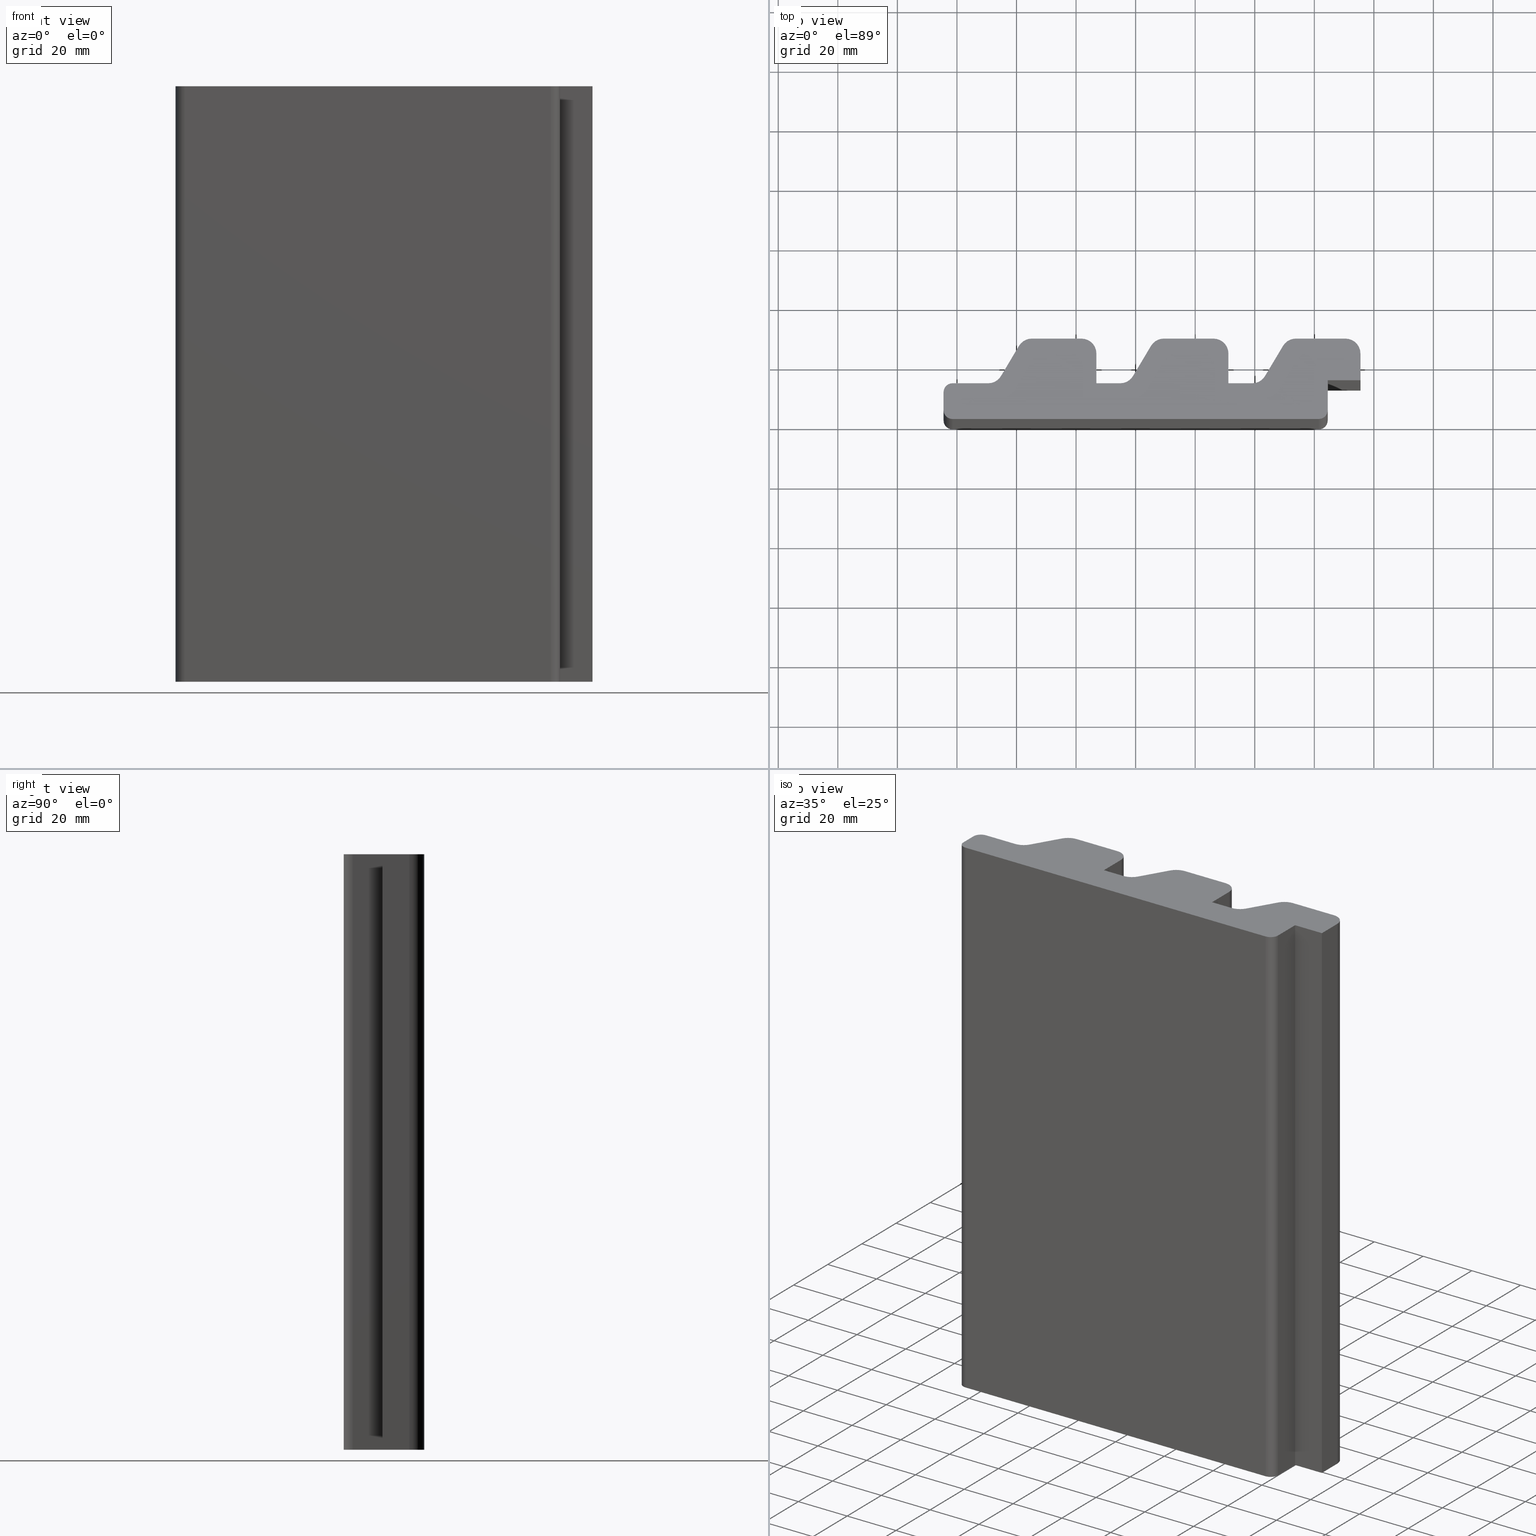
[diagram: canonical four-view strip — front | top / right | iso, engineering-drawing reading convention]
A machine part, canonical four-view strip (front | top / right | iso — engineering-drawing reading convention). The complete STEP part file that produces these views, byte-faithful:
ISO-10303-21;
HEADER;
/* Generated by software containing ST-Developer
 * from STEP Tools, Inc. (www.steptools.com) 
 */

FILE_DESCRIPTION(
/* description */ (''),
/* implementation_level */ '2;1');

FILE_NAME(
/* name */ 
'C:/Users/Eigenaar/Documents/Andrew/Ventura Welding (Workshop)/For Con
struction 2021/PlatoWood profile drawings/PlatoWood profiles, STEP/Pla
toWood 27x140 P10 (Tandprofiel).step',
/* time_stamp */ '2021-11-11T08:04:43+01:00',
/* author */ (''),
/* organization */ (''),
/* preprocessor_version */ 'ST-DEVELOPER v18.1',
/* originating_system */ 'Autodesk Translation Framework v10.10.0.1391',

/* authorisation */ '');

FILE_SCHEMA (('AUTOMOTIVE_DESIGN { 1 0 10303 214 3 1 1 }'));
ENDSEC;

DATA;
#10=MECHANICAL_DESIGN_GEOMETRIC_PRESENTATION_REPRESENTATION('',(#13),#999);
#11=SHAPE_REPRESENTATION_RELATIONSHIP('SRR','None',#1006,#12);
#12=ADVANCED_BREP_SHAPE_REPRESENTATION('',(#14),#998);
#13=STYLED_ITEM('',(#1016),#14);
#14=MANIFOLD_SOLID_BREP('Body1',#587);
#15=PLANE('',#604);
#16=PLANE('',#608);
#17=PLANE('',#612);
#18=PLANE('',#613);
#19=PLANE('',#614);
#20=PLANE('',#618);
#21=PLANE('',#622);
#22=PLANE('',#626);
#23=PLANE('',#630);
#24=PLANE('',#634);
#25=PLANE('',#638);
#26=PLANE('',#639);
#27=PLANE('',#643);
#28=PLANE('',#647);
#29=PLANE('',#651);
#30=PLANE('',#652);
#31=PLANE('',#653);
#32=PLANE('',#654);
#33=FACE_OUTER_BOUND('',#63,.T.);
#34=FACE_OUTER_BOUND('',#64,.T.);
#35=FACE_OUTER_BOUND('',#65,.T.);
#36=FACE_OUTER_BOUND('',#66,.T.);
#37=FACE_OUTER_BOUND('',#67,.T.);
#38=FACE_OUTER_BOUND('',#68,.T.);
#39=FACE_OUTER_BOUND('',#69,.T.);
#40=FACE_OUTER_BOUND('',#70,.T.);
#41=FACE_OUTER_BOUND('',#71,.T.);
#42=FACE_OUTER_BOUND('',#72,.T.);
#43=FACE_OUTER_BOUND('',#73,.T.);
#44=FACE_OUTER_BOUND('',#74,.T.);
#45=FACE_OUTER_BOUND('',#75,.T.);
#46=FACE_OUTER_BOUND('',#76,.T.);
#47=FACE_OUTER_BOUND('',#77,.T.);
#48=FACE_OUTER_BOUND('',#78,.T.);
#49=FACE_OUTER_BOUND('',#79,.T.);
#50=FACE_OUTER_BOUND('',#80,.T.);
#51=FACE_OUTER_BOUND('',#81,.T.);
#52=FACE_OUTER_BOUND('',#82,.T.);
#53=FACE_OUTER_BOUND('',#83,.T.);
#54=FACE_OUTER_BOUND('',#84,.T.);
#55=FACE_OUTER_BOUND('',#85,.T.);
#56=FACE_OUTER_BOUND('',#86,.T.);
#57=FACE_OUTER_BOUND('',#87,.T.);
#58=FACE_OUTER_BOUND('',#88,.T.);
#59=FACE_OUTER_BOUND('',#89,.T.);
#60=FACE_OUTER_BOUND('',#90,.T.);
#61=FACE_OUTER_BOUND('',#91,.T.);
#62=FACE_OUTER_BOUND('',#92,.T.);
#63=EDGE_LOOP('',(#377,#378,#379,#380));
#64=EDGE_LOOP('',(#381,#382,#383,#384));
#65=EDGE_LOOP('',(#385,#386,#387,#388));
#66=EDGE_LOOP('',(#389,#390,#391,#392));
#67=EDGE_LOOP('',(#393,#394,#395,#396));
#68=EDGE_LOOP('',(#397,#398,#399,#400));
#69=EDGE_LOOP('',(#401,#402,#403,#404));
#70=EDGE_LOOP('',(#405,#406,#407,#408));
#71=EDGE_LOOP('',(#409,#410,#411,#412));
#72=EDGE_LOOP('',(#413,#414,#415,#416));
#73=EDGE_LOOP('',(#417,#418,#419,#420));
#74=EDGE_LOOP('',(#421,#422,#423,#424));
#75=EDGE_LOOP('',(#425,#426,#427,#428));
#76=EDGE_LOOP('',(#429,#430,#431,#432));
#77=EDGE_LOOP('',(#433,#434,#435,#436));
#78=EDGE_LOOP('',(#437,#438,#439,#440));
#79=EDGE_LOOP('',(#441,#442,#443,#444));
#80=EDGE_LOOP('',(#445,#446,#447,#448));
#81=EDGE_LOOP('',(#449,#450,#451,#452));
#82=EDGE_LOOP('',(#453,#454,#455,#456));
#83=EDGE_LOOP('',(#457,#458,#459,#460));
#84=EDGE_LOOP('',(#461,#462,#463,#464));
#85=EDGE_LOOP('',(#465,#466,#467,#468));
#86=EDGE_LOOP('',(#469,#470,#471,#472));
#87=EDGE_LOOP('',(#473,#474,#475,#476));
#88=EDGE_LOOP('',(#477,#478,#479,#480));
#89=EDGE_LOOP('',(#481,#482,#483,#484));
#90=EDGE_LOOP('',(#485,#486,#487,#488));
#91=EDGE_LOOP('',(#489,#490,#491,#492,#493,#494,#495,#496,#497,#498,#499,
#500,#501,#502,#503,#504,#505,#506,#507,#508,#509,#510,#511,#512,#513,#514,
#515,#516));
#92=EDGE_LOOP('',(#517,#518,#519,#520,#521,#522,#523,#524,#525,#526,#527,
#528,#529,#530,#531,#532,#533,#534,#535,#536,#537,#538,#539,#540,#541,#542,
#543,#544));
#93=LINE('',#831,#153);
#94=LINE('',#834,#154);
#95=LINE('',#837,#155);
#96=LINE('',#839,#156);
#97=LINE('',#840,#157);
#98=LINE('',#846,#158);
#99=LINE('',#849,#159);
#100=LINE('',#851,#160);
#101=LINE('',#852,#161);
#102=LINE('',#858,#162);
#103=LINE('',#861,#163);
#104=LINE('',#863,#164);
#105=LINE('',#864,#165);
#106=LINE('',#867,#166);
#107=LINE('',#869,#167);
#108=LINE('',#870,#168);
#109=LINE('',#873,#169);
#110=LINE('',#875,#170);
#111=LINE('',#876,#171);
#112=LINE('',#882,#172);
#113=LINE('',#885,#173);
#114=LINE('',#887,#174);
#115=LINE('',#888,#175);
#116=LINE('',#894,#176);
#117=LINE('',#897,#177);
#118=LINE('',#899,#178);
#119=LINE('',#900,#179);
#120=LINE('',#906,#180);
#121=LINE('',#909,#181);
#122=LINE('',#911,#182);
#123=LINE('',#912,#183);
#124=LINE('',#918,#184);
#125=LINE('',#921,#185);
#126=LINE('',#923,#186);
#127=LINE('',#924,#187);
#128=LINE('',#930,#188);
#129=LINE('',#933,#189);
#130=LINE('',#935,#190);
#131=LINE('',#936,#191);
#132=LINE('',#942,#192);
#133=LINE('',#945,#193);
#134=LINE('',#947,#194);
#135=LINE('',#948,#195);
#136=LINE('',#951,#196);
#137=LINE('',#953,#197);
#138=LINE('',#954,#198);
#139=LINE('',#960,#199);
#140=LINE('',#963,#200);
#141=LINE('',#965,#201);
#142=LINE('',#966,#202);
#143=LINE('',#972,#203);
#144=LINE('',#975,#204);
#145=LINE('',#977,#205);
#146=LINE('',#978,#206);
#147=LINE('',#984,#207);
#148=LINE('',#987,#208);
#149=LINE('',#989,#209);
#150=LINE('',#990,#210);
#151=LINE('',#992,#211);
#152=LINE('',#993,#212);
#153=VECTOR('',#661,10.);
#154=VECTOR('',#664,10.);
#155=VECTOR('',#667,10.);
#156=VECTOR('',#668,10.);
#157=VECTOR('',#669,10.);
#158=VECTOR('',#676,10.);
#159=VECTOR('',#679,10.);
#160=VECTOR('',#680,10.);
#161=VECTOR('',#681,10.);
#162=VECTOR('',#688,10.);
#163=VECTOR('',#691,10.);
#164=VECTOR('',#692,10.);
#165=VECTOR('',#693,10.);
#166=VECTOR('',#696,10.);
#167=VECTOR('',#697,10.);
#168=VECTOR('',#698,10.);
#169=VECTOR('',#701,10.);
#170=VECTOR('',#702,10.);
#171=VECTOR('',#703,10.);
#172=VECTOR('',#710,10.);
#173=VECTOR('',#713,10.);
#174=VECTOR('',#714,10.);
#175=VECTOR('',#715,10.);
#176=VECTOR('',#722,10.);
#177=VECTOR('',#725,10.);
#178=VECTOR('',#726,10.);
#179=VECTOR('',#727,10.);
#180=VECTOR('',#734,10.);
#181=VECTOR('',#737,10.);
#182=VECTOR('',#738,10.);
#183=VECTOR('',#739,10.);
#184=VECTOR('',#746,10.);
#185=VECTOR('',#749,10.);
#186=VECTOR('',#750,10.);
#187=VECTOR('',#751,10.);
#188=VECTOR('',#758,10.);
#189=VECTOR('',#761,10.);
#190=VECTOR('',#762,10.);
#191=VECTOR('',#763,10.);
#192=VECTOR('',#770,10.);
#193=VECTOR('',#773,10.);
#194=VECTOR('',#774,10.);
#195=VECTOR('',#775,10.);
#196=VECTOR('',#778,10.);
#197=VECTOR('',#779,10.);
#198=VECTOR('',#780,10.);
#199=VECTOR('',#787,10.);
#200=VECTOR('',#790,10.);
#201=VECTOR('',#791,10.);
#202=VECTOR('',#792,10.);
#203=VECTOR('',#799,10.);
#204=VECTOR('',#802,10.);
#205=VECTOR('',#803,10.);
#206=VECTOR('',#804,10.);
#207=VECTOR('',#811,10.);
#208=VECTOR('',#814,10.);
#209=VECTOR('',#815,10.);
#210=VECTOR('',#816,10.);
#211=VECTOR('',#819,10.);
#212=VECTOR('',#820,10.);
#213=CIRCLE('',#602,4.99999999999996);
#214=CIRCLE('',#603,4.99999999999996);
#215=CIRCLE('',#606,5.00000000000231);
#216=CIRCLE('',#607,5.00000000000231);
#217=CIRCLE('',#610,5.);
#218=CIRCLE('',#611,5.);
#219=CIRCLE('',#616,2.99999999996608);
#220=CIRCLE('',#617,2.99999999996608);
#221=CIRCLE('',#620,2.99999999998435);
#222=CIRCLE('',#621,2.99999999998435);
#223=CIRCLE('',#624,3.00000000000069);
#224=CIRCLE('',#625,3.00000000000069);
#225=CIRCLE('',#628,5.);
#226=CIRCLE('',#629,5.);
#227=CIRCLE('',#632,4.99999999999862);
#228=CIRCLE('',#633,4.99999999999862);
#229=CIRCLE('',#636,5.);
#230=CIRCLE('',#637,5.);
#231=CIRCLE('',#641,5.);
#232=CIRCLE('',#642,5.);
#233=CIRCLE('',#645,5.0000000000001);
#234=CIRCLE('',#646,5.0000000000001);
#235=CIRCLE('',#649,4.99999999999968);
#236=CIRCLE('',#650,4.99999999999968);
#237=VERTEX_POINT('',#827);
#238=VERTEX_POINT('',#828);
#239=VERTEX_POINT('',#830);
#240=VERTEX_POINT('',#832);
#241=VERTEX_POINT('',#836);
#242=VERTEX_POINT('',#838);
#243=VERTEX_POINT('',#842);
#244=VERTEX_POINT('',#844);
#245=VERTEX_POINT('',#848);
#246=VERTEX_POINT('',#850);
#247=VERTEX_POINT('',#854);
#248=VERTEX_POINT('',#856);
#249=VERTEX_POINT('',#860);
#250=VERTEX_POINT('',#862);
#251=VERTEX_POINT('',#866);
#252=VERTEX_POINT('',#868);
#253=VERTEX_POINT('',#872);
#254=VERTEX_POINT('',#874);
#255=VERTEX_POINT('',#878);
#256=VERTEX_POINT('',#880);
#257=VERTEX_POINT('',#884);
#258=VERTEX_POINT('',#886);
#259=VERTEX_POINT('',#890);
#260=VERTEX_POINT('',#892);
#261=VERTEX_POINT('',#896);
#262=VERTEX_POINT('',#898);
#263=VERTEX_POINT('',#902);
#264=VERTEX_POINT('',#904);
#265=VERTEX_POINT('',#908);
#266=VERTEX_POINT('',#910);
#267=VERTEX_POINT('',#914);
#268=VERTEX_POINT('',#916);
#269=VERTEX_POINT('',#920);
#270=VERTEX_POINT('',#922);
#271=VERTEX_POINT('',#926);
#272=VERTEX_POINT('',#928);
#273=VERTEX_POINT('',#932);
#274=VERTEX_POINT('',#934);
#275=VERTEX_POINT('',#938);
#276=VERTEX_POINT('',#940);
#277=VERTEX_POINT('',#944);
#278=VERTEX_POINT('',#946);
#279=VERTEX_POINT('',#950);
#280=VERTEX_POINT('',#952);
#281=VERTEX_POINT('',#956);
#282=VERTEX_POINT('',#958);
#283=VERTEX_POINT('',#962);
#284=VERTEX_POINT('',#964);
#285=VERTEX_POINT('',#968);
#286=VERTEX_POINT('',#970);
#287=VERTEX_POINT('',#974);
#288=VERTEX_POINT('',#976);
#289=VERTEX_POINT('',#980);
#290=VERTEX_POINT('',#982);
#291=VERTEX_POINT('',#986);
#292=VERTEX_POINT('',#988);
#293=EDGE_CURVE('',#237,#238,#213,.T.);
#294=EDGE_CURVE('',#237,#239,#93,.T.);
#295=EDGE_CURVE('',#240,#239,#214,.T.);
#296=EDGE_CURVE('',#238,#240,#94,.T.);
#297=EDGE_CURVE('',#241,#238,#95,.T.);
#298=EDGE_CURVE('',#242,#240,#96,.T.);
#299=EDGE_CURVE('',#241,#242,#97,.T.);
#300=EDGE_CURVE('',#243,#241,#215,.T.);
#301=EDGE_CURVE('',#244,#242,#216,.T.);
#302=EDGE_CURVE('',#243,#244,#98,.T.);
#303=EDGE_CURVE('',#243,#245,#99,.T.);
#304=EDGE_CURVE('',#246,#244,#100,.T.);
#305=EDGE_CURVE('',#245,#246,#101,.T.);
#306=EDGE_CURVE('',#247,#245,#217,.T.);
#307=EDGE_CURVE('',#248,#246,#218,.T.);
#308=EDGE_CURVE('',#247,#248,#102,.T.);
#309=EDGE_CURVE('',#249,#247,#103,.T.);
#310=EDGE_CURVE('',#250,#248,#104,.T.);
#311=EDGE_CURVE('',#249,#250,#105,.T.);
#312=EDGE_CURVE('',#251,#249,#106,.T.);
#313=EDGE_CURVE('',#252,#250,#107,.T.);
#314=EDGE_CURVE('',#251,#252,#108,.T.);
#315=EDGE_CURVE('',#253,#251,#109,.T.);
#316=EDGE_CURVE('',#254,#252,#110,.T.);
#317=EDGE_CURVE('',#253,#254,#111,.T.);
#318=EDGE_CURVE('',#255,#253,#219,.T.);
#319=EDGE_CURVE('',#256,#254,#220,.T.);
#320=EDGE_CURVE('',#255,#256,#112,.T.);
#321=EDGE_CURVE('',#257,#255,#113,.T.);
#322=EDGE_CURVE('',#258,#256,#114,.T.);
#323=EDGE_CURVE('',#257,#258,#115,.T.);
#324=EDGE_CURVE('',#259,#257,#221,.T.);
#325=EDGE_CURVE('',#260,#258,#222,.T.);
#326=EDGE_CURVE('',#259,#260,#116,.T.);
#327=EDGE_CURVE('',#259,#261,#117,.T.);
#328=EDGE_CURVE('',#262,#260,#118,.T.);
#329=EDGE_CURVE('',#261,#262,#119,.T.);
#330=EDGE_CURVE('',#263,#261,#223,.T.);
#331=EDGE_CURVE('',#264,#262,#224,.T.);
#332=EDGE_CURVE('',#263,#264,#120,.T.);
#333=EDGE_CURVE('',#263,#265,#121,.T.);
#334=EDGE_CURVE('',#266,#264,#122,.T.);
#335=EDGE_CURVE('',#265,#266,#123,.T.);
#336=EDGE_CURVE('',#265,#267,#225,.T.);
#337=EDGE_CURVE('',#268,#266,#226,.T.);
#338=EDGE_CURVE('',#267,#268,#124,.T.);
#339=EDGE_CURVE('',#269,#267,#125,.T.);
#340=EDGE_CURVE('',#270,#268,#126,.T.);
#341=EDGE_CURVE('',#269,#270,#127,.T.);
#342=EDGE_CURVE('',#271,#269,#227,.T.);
#343=EDGE_CURVE('',#272,#270,#228,.T.);
#344=EDGE_CURVE('',#271,#272,#128,.T.);
#345=EDGE_CURVE('',#273,#271,#129,.T.);
#346=EDGE_CURVE('',#274,#272,#130,.T.);
#347=EDGE_CURVE('',#273,#274,#131,.T.);
#348=EDGE_CURVE('',#275,#273,#229,.T.);
#349=EDGE_CURVE('',#276,#274,#230,.T.);
#350=EDGE_CURVE('',#275,#276,#132,.T.);
#351=EDGE_CURVE('',#277,#275,#133,.T.);
#352=EDGE_CURVE('',#278,#276,#134,.T.);
#353=EDGE_CURVE('',#277,#278,#135,.T.);
#354=EDGE_CURVE('',#277,#279,#136,.T.);
#355=EDGE_CURVE('',#280,#278,#137,.T.);
#356=EDGE_CURVE('',#279,#280,#138,.T.);
#357=EDGE_CURVE('',#279,#281,#231,.T.);
#358=EDGE_CURVE('',#282,#280,#232,.T.);
#359=EDGE_CURVE('',#281,#282,#139,.T.);
#360=EDGE_CURVE('',#283,#281,#140,.T.);
#361=EDGE_CURVE('',#284,#282,#141,.T.);
#362=EDGE_CURVE('',#283,#284,#142,.T.);
#363=EDGE_CURVE('',#285,#283,#233,.T.);
#364=EDGE_CURVE('',#286,#284,#234,.T.);
#365=EDGE_CURVE('',#285,#286,#143,.T.);
#366=EDGE_CURVE('',#287,#285,#144,.T.);
#367=EDGE_CURVE('',#288,#286,#145,.T.);
#368=EDGE_CURVE('',#287,#288,#146,.T.);
#369=EDGE_CURVE('',#289,#287,#235,.T.);
#370=EDGE_CURVE('',#290,#288,#236,.T.);
#371=EDGE_CURVE('',#289,#290,#147,.T.);
#372=EDGE_CURVE('',#291,#289,#148,.T.);
#373=EDGE_CURVE('',#292,#290,#149,.T.);
#374=EDGE_CURVE('',#291,#292,#150,.T.);
#375=EDGE_CURVE('',#237,#291,#151,.T.);
#376=EDGE_CURVE('',#239,#292,#152,.T.);
#377=ORIENTED_EDGE('',*,*,#293,.F.);
#378=ORIENTED_EDGE('',*,*,#294,.T.);
#379=ORIENTED_EDGE('',*,*,#295,.F.);
#380=ORIENTED_EDGE('',*,*,#296,.F.);
#381=ORIENTED_EDGE('',*,*,#297,.T.);
#382=ORIENTED_EDGE('',*,*,#296,.T.);
#383=ORIENTED_EDGE('',*,*,#298,.F.);
#384=ORIENTED_EDGE('',*,*,#299,.F.);
#385=ORIENTED_EDGE('',*,*,#300,.T.);
#386=ORIENTED_EDGE('',*,*,#299,.T.);
#387=ORIENTED_EDGE('',*,*,#301,.F.);
#388=ORIENTED_EDGE('',*,*,#302,.F.);
#389=ORIENTED_EDGE('',*,*,#303,.F.);
#390=ORIENTED_EDGE('',*,*,#302,.T.);
#391=ORIENTED_EDGE('',*,*,#304,.F.);
#392=ORIENTED_EDGE('',*,*,#305,.F.);
#393=ORIENTED_EDGE('',*,*,#306,.T.);
#394=ORIENTED_EDGE('',*,*,#305,.T.);
#395=ORIENTED_EDGE('',*,*,#307,.F.);
#396=ORIENTED_EDGE('',*,*,#308,.F.);
#397=ORIENTED_EDGE('',*,*,#309,.T.);
#398=ORIENTED_EDGE('',*,*,#308,.T.);
#399=ORIENTED_EDGE('',*,*,#310,.F.);
#400=ORIENTED_EDGE('',*,*,#311,.F.);
#401=ORIENTED_EDGE('',*,*,#312,.T.);
#402=ORIENTED_EDGE('',*,*,#311,.T.);
#403=ORIENTED_EDGE('',*,*,#313,.F.);
#404=ORIENTED_EDGE('',*,*,#314,.F.);
#405=ORIENTED_EDGE('',*,*,#315,.T.);
#406=ORIENTED_EDGE('',*,*,#314,.T.);
#407=ORIENTED_EDGE('',*,*,#316,.F.);
#408=ORIENTED_EDGE('',*,*,#317,.F.);
#409=ORIENTED_EDGE('',*,*,#318,.T.);
#410=ORIENTED_EDGE('',*,*,#317,.T.);
#411=ORIENTED_EDGE('',*,*,#319,.F.);
#412=ORIENTED_EDGE('',*,*,#320,.F.);
#413=ORIENTED_EDGE('',*,*,#321,.T.);
#414=ORIENTED_EDGE('',*,*,#320,.T.);
#415=ORIENTED_EDGE('',*,*,#322,.F.);
#416=ORIENTED_EDGE('',*,*,#323,.F.);
#417=ORIENTED_EDGE('',*,*,#324,.T.);
#418=ORIENTED_EDGE('',*,*,#323,.T.);
#419=ORIENTED_EDGE('',*,*,#325,.F.);
#420=ORIENTED_EDGE('',*,*,#326,.F.);
#421=ORIENTED_EDGE('',*,*,#327,.F.);
#422=ORIENTED_EDGE('',*,*,#326,.T.);
#423=ORIENTED_EDGE('',*,*,#328,.F.);
#424=ORIENTED_EDGE('',*,*,#329,.F.);
#425=ORIENTED_EDGE('',*,*,#330,.T.);
#426=ORIENTED_EDGE('',*,*,#329,.T.);
#427=ORIENTED_EDGE('',*,*,#331,.F.);
#428=ORIENTED_EDGE('',*,*,#332,.F.);
#429=ORIENTED_EDGE('',*,*,#333,.F.);
#430=ORIENTED_EDGE('',*,*,#332,.T.);
#431=ORIENTED_EDGE('',*,*,#334,.F.);
#432=ORIENTED_EDGE('',*,*,#335,.F.);
#433=ORIENTED_EDGE('',*,*,#336,.F.);
#434=ORIENTED_EDGE('',*,*,#335,.T.);
#435=ORIENTED_EDGE('',*,*,#337,.F.);
#436=ORIENTED_EDGE('',*,*,#338,.F.);
#437=ORIENTED_EDGE('',*,*,#339,.T.);
#438=ORIENTED_EDGE('',*,*,#338,.T.);
#439=ORIENTED_EDGE('',*,*,#340,.F.);
#440=ORIENTED_EDGE('',*,*,#341,.F.);
#441=ORIENTED_EDGE('',*,*,#342,.T.);
#442=ORIENTED_EDGE('',*,*,#341,.T.);
#443=ORIENTED_EDGE('',*,*,#343,.F.);
#444=ORIENTED_EDGE('',*,*,#344,.F.);
#445=ORIENTED_EDGE('',*,*,#345,.T.);
#446=ORIENTED_EDGE('',*,*,#344,.T.);
#447=ORIENTED_EDGE('',*,*,#346,.F.);
#448=ORIENTED_EDGE('',*,*,#347,.F.);
#449=ORIENTED_EDGE('',*,*,#348,.T.);
#450=ORIENTED_EDGE('',*,*,#347,.T.);
#451=ORIENTED_EDGE('',*,*,#349,.F.);
#452=ORIENTED_EDGE('',*,*,#350,.F.);
#453=ORIENTED_EDGE('',*,*,#351,.T.);
#454=ORIENTED_EDGE('',*,*,#350,.T.);
#455=ORIENTED_EDGE('',*,*,#352,.F.);
#456=ORIENTED_EDGE('',*,*,#353,.F.);
#457=ORIENTED_EDGE('',*,*,#354,.F.);
#458=ORIENTED_EDGE('',*,*,#353,.T.);
#459=ORIENTED_EDGE('',*,*,#355,.F.);
#460=ORIENTED_EDGE('',*,*,#356,.F.);
#461=ORIENTED_EDGE('',*,*,#357,.F.);
#462=ORIENTED_EDGE('',*,*,#356,.T.);
#463=ORIENTED_EDGE('',*,*,#358,.F.);
#464=ORIENTED_EDGE('',*,*,#359,.F.);
#465=ORIENTED_EDGE('',*,*,#360,.T.);
#466=ORIENTED_EDGE('',*,*,#359,.T.);
#467=ORIENTED_EDGE('',*,*,#361,.F.);
#468=ORIENTED_EDGE('',*,*,#362,.F.);
#469=ORIENTED_EDGE('',*,*,#363,.T.);
#470=ORIENTED_EDGE('',*,*,#362,.T.);
#471=ORIENTED_EDGE('',*,*,#364,.F.);
#472=ORIENTED_EDGE('',*,*,#365,.F.);
#473=ORIENTED_EDGE('',*,*,#366,.T.);
#474=ORIENTED_EDGE('',*,*,#365,.T.);
#475=ORIENTED_EDGE('',*,*,#367,.F.);
#476=ORIENTED_EDGE('',*,*,#368,.F.);
#477=ORIENTED_EDGE('',*,*,#369,.T.);
#478=ORIENTED_EDGE('',*,*,#368,.T.);
#479=ORIENTED_EDGE('',*,*,#370,.F.);
#480=ORIENTED_EDGE('',*,*,#371,.F.);
#481=ORIENTED_EDGE('',*,*,#372,.T.);
#482=ORIENTED_EDGE('',*,*,#371,.T.);
#483=ORIENTED_EDGE('',*,*,#373,.F.);
#484=ORIENTED_EDGE('',*,*,#374,.F.);
#485=ORIENTED_EDGE('',*,*,#375,.T.);
#486=ORIENTED_EDGE('',*,*,#374,.T.);
#487=ORIENTED_EDGE('',*,*,#376,.F.);
#488=ORIENTED_EDGE('',*,*,#294,.F.);
#489=ORIENTED_EDGE('',*,*,#376,.T.);
#490=ORIENTED_EDGE('',*,*,#373,.T.);
#491=ORIENTED_EDGE('',*,*,#370,.T.);
#492=ORIENTED_EDGE('',*,*,#367,.T.);
#493=ORIENTED_EDGE('',*,*,#364,.T.);
#494=ORIENTED_EDGE('',*,*,#361,.T.);
#495=ORIENTED_EDGE('',*,*,#358,.T.);
#496=ORIENTED_EDGE('',*,*,#355,.T.);
#497=ORIENTED_EDGE('',*,*,#352,.T.);
#498=ORIENTED_EDGE('',*,*,#349,.T.);
#499=ORIENTED_EDGE('',*,*,#346,.T.);
#500=ORIENTED_EDGE('',*,*,#343,.T.);
#501=ORIENTED_EDGE('',*,*,#340,.T.);
#502=ORIENTED_EDGE('',*,*,#337,.T.);
#503=ORIENTED_EDGE('',*,*,#334,.T.);
#504=ORIENTED_EDGE('',*,*,#331,.T.);
#505=ORIENTED_EDGE('',*,*,#328,.T.);
#506=ORIENTED_EDGE('',*,*,#325,.T.);
#507=ORIENTED_EDGE('',*,*,#322,.T.);
#508=ORIENTED_EDGE('',*,*,#319,.T.);
#509=ORIENTED_EDGE('',*,*,#316,.T.);
#510=ORIENTED_EDGE('',*,*,#313,.T.);
#511=ORIENTED_EDGE('',*,*,#310,.T.);
#512=ORIENTED_EDGE('',*,*,#307,.T.);
#513=ORIENTED_EDGE('',*,*,#304,.T.);
#514=ORIENTED_EDGE('',*,*,#301,.T.);
#515=ORIENTED_EDGE('',*,*,#298,.T.);
#516=ORIENTED_EDGE('',*,*,#295,.T.);
#517=ORIENTED_EDGE('',*,*,#375,.F.);
#518=ORIENTED_EDGE('',*,*,#293,.T.);
#519=ORIENTED_EDGE('',*,*,#297,.F.);
#520=ORIENTED_EDGE('',*,*,#300,.F.);
#521=ORIENTED_EDGE('',*,*,#303,.T.);
#522=ORIENTED_EDGE('',*,*,#306,.F.);
#523=ORIENTED_EDGE('',*,*,#309,.F.);
#524=ORIENTED_EDGE('',*,*,#312,.F.);
#525=ORIENTED_EDGE('',*,*,#315,.F.);
#526=ORIENTED_EDGE('',*,*,#318,.F.);
#527=ORIENTED_EDGE('',*,*,#321,.F.);
#528=ORIENTED_EDGE('',*,*,#324,.F.);
#529=ORIENTED_EDGE('',*,*,#327,.T.);
#530=ORIENTED_EDGE('',*,*,#330,.F.);
#531=ORIENTED_EDGE('',*,*,#333,.T.);
#532=ORIENTED_EDGE('',*,*,#336,.T.);
#533=ORIENTED_EDGE('',*,*,#339,.F.);
#534=ORIENTED_EDGE('',*,*,#342,.F.);
#535=ORIENTED_EDGE('',*,*,#345,.F.);
#536=ORIENTED_EDGE('',*,*,#348,.F.);
#537=ORIENTED_EDGE('',*,*,#351,.F.);
#538=ORIENTED_EDGE('',*,*,#354,.T.);
#539=ORIENTED_EDGE('',*,*,#357,.T.);
#540=ORIENTED_EDGE('',*,*,#360,.F.);
#541=ORIENTED_EDGE('',*,*,#363,.F.);
#542=ORIENTED_EDGE('',*,*,#366,.F.);
#543=ORIENTED_EDGE('',*,*,#369,.F.);
#544=ORIENTED_EDGE('',*,*,#372,.F.);
#545=CYLINDRICAL_SURFACE('',#601,4.99999999999996);
#546=CYLINDRICAL_SURFACE('',#605,5.00000000000231);
#547=CYLINDRICAL_SURFACE('',#609,5.);
#548=CYLINDRICAL_SURFACE('',#615,2.99999999996608);
#549=CYLINDRICAL_SURFACE('',#619,2.99999999998435);
#550=CYLINDRICAL_SURFACE('',#623,3.00000000000069);
#551=CYLINDRICAL_SURFACE('',#627,5.);
#552=CYLINDRICAL_SURFACE('',#631,4.99999999999862);
#553=CYLINDRICAL_SURFACE('',#635,5.);
#554=CYLINDRICAL_SURFACE('',#640,5.);
#555=CYLINDRICAL_SURFACE('',#644,5.0000000000001);
#556=CYLINDRICAL_SURFACE('',#648,4.99999999999968);
#557=ADVANCED_FACE('',(#33),#545,.F.);
#558=ADVANCED_FACE('',(#34),#15,.T.);
#559=ADVANCED_FACE('',(#35),#546,.T.);
#560=ADVANCED_FACE('',(#36),#16,.T.);
#561=ADVANCED_FACE('',(#37),#547,.T.);
#562=ADVANCED_FACE('',(#38),#17,.T.);
#563=ADVANCED_FACE('',(#39),#18,.T.);
#564=ADVANCED_FACE('',(#40),#19,.T.);
#565=ADVANCED_FACE('',(#41),#548,.T.);
#566=ADVANCED_FACE('',(#42),#20,.T.);
#567=ADVANCED_FACE('',(#43),#549,.T.);
#568=ADVANCED_FACE('',(#44),#21,.T.);
#569=ADVANCED_FACE('',(#45),#550,.T.);
#570=ADVANCED_FACE('',(#46),#22,.T.);
#571=ADVANCED_FACE('',(#47),#551,.F.);
#572=ADVANCED_FACE('',(#48),#23,.T.);
#573=ADVANCED_FACE('',(#49),#552,.T.);
#574=ADVANCED_FACE('',(#50),#24,.T.);
#575=ADVANCED_FACE('',(#51),#553,.T.);
#576=ADVANCED_FACE('',(#52),#25,.T.);
#577=ADVANCED_FACE('',(#53),#26,.T.);
#578=ADVANCED_FACE('',(#54),#554,.F.);
#579=ADVANCED_FACE('',(#55),#27,.T.);
#580=ADVANCED_FACE('',(#56),#555,.T.);
#581=ADVANCED_FACE('',(#57),#28,.T.);
#582=ADVANCED_FACE('',(#58),#556,.T.);
#583=ADVANCED_FACE('',(#59),#29,.T.);
#584=ADVANCED_FACE('',(#60),#30,.T.);
#585=ADVANCED_FACE('',(#61),#31,.T.);
#586=ADVANCED_FACE('',(#62),#32,.F.);
#587=CLOSED_SHELL('',(#557,#558,#559,#560,#561,#562,#563,#564,#565,#566,
#567,#568,#569,#570,#571,#572,#573,#574,#575,#576,#577,#578,#579,#580,#581,
#582,#583,#584,#585,#586));
#588=DERIVED_UNIT_ELEMENT(#590,1.);
#589=DERIVED_UNIT_ELEMENT(#1001,-3.);
#590=(
MASS_UNIT()
NAMED_UNIT(*)
SI_UNIT(.KILO.,.GRAM.)
);
#591=DERIVED_UNIT((#588,#589));
#592=MEASURE_REPRESENTATION_ITEM('density measure',
POSITIVE_RATIO_MEASURE(7850.),#591);
#593=PROPERTY_DEFINITION_REPRESENTATION(#598,#595);
#594=PROPERTY_DEFINITION_REPRESENTATION(#599,#596);
#595=REPRESENTATION('material name',(#597),#998);
#596=REPRESENTATION('density',(#592),#998);
#597=DESCRIPTIVE_REPRESENTATION_ITEM('Steel','Steel');
#598=PROPERTY_DEFINITION('material property','material name',#1008);
#599=PROPERTY_DEFINITION('material property','density of part',#1008);
#600=AXIS2_PLACEMENT_3D('placement',#825,#655,#656);
#601=AXIS2_PLACEMENT_3D('',#826,#657,#658);
#602=AXIS2_PLACEMENT_3D('',#829,#659,#660);
#603=AXIS2_PLACEMENT_3D('',#833,#662,#663);
#604=AXIS2_PLACEMENT_3D('',#835,#665,#666);
#605=AXIS2_PLACEMENT_3D('',#841,#670,#671);
#606=AXIS2_PLACEMENT_3D('',#843,#672,#673);
#607=AXIS2_PLACEMENT_3D('',#845,#674,#675);
#608=AXIS2_PLACEMENT_3D('',#847,#677,#678);
#609=AXIS2_PLACEMENT_3D('',#853,#682,#683);
#610=AXIS2_PLACEMENT_3D('',#855,#684,#685);
#611=AXIS2_PLACEMENT_3D('',#857,#686,#687);
#612=AXIS2_PLACEMENT_3D('',#859,#689,#690);
#613=AXIS2_PLACEMENT_3D('',#865,#694,#695);
#614=AXIS2_PLACEMENT_3D('',#871,#699,#700);
#615=AXIS2_PLACEMENT_3D('',#877,#704,#705);
#616=AXIS2_PLACEMENT_3D('',#879,#706,#707);
#617=AXIS2_PLACEMENT_3D('',#881,#708,#709);
#618=AXIS2_PLACEMENT_3D('',#883,#711,#712);
#619=AXIS2_PLACEMENT_3D('',#889,#716,#717);
#620=AXIS2_PLACEMENT_3D('',#891,#718,#719);
#621=AXIS2_PLACEMENT_3D('',#893,#720,#721);
#622=AXIS2_PLACEMENT_3D('',#895,#723,#724);
#623=AXIS2_PLACEMENT_3D('',#901,#728,#729);
#624=AXIS2_PLACEMENT_3D('',#903,#730,#731);
#625=AXIS2_PLACEMENT_3D('',#905,#732,#733);
#626=AXIS2_PLACEMENT_3D('',#907,#735,#736);
#627=AXIS2_PLACEMENT_3D('',#913,#740,#741);
#628=AXIS2_PLACEMENT_3D('',#915,#742,#743);
#629=AXIS2_PLACEMENT_3D('',#917,#744,#745);
#630=AXIS2_PLACEMENT_3D('',#919,#747,#748);
#631=AXIS2_PLACEMENT_3D('',#925,#752,#753);
#632=AXIS2_PLACEMENT_3D('',#927,#754,#755);
#633=AXIS2_PLACEMENT_3D('',#929,#756,#757);
#634=AXIS2_PLACEMENT_3D('',#931,#759,#760);
#635=AXIS2_PLACEMENT_3D('',#937,#764,#765);
#636=AXIS2_PLACEMENT_3D('',#939,#766,#767);
#637=AXIS2_PLACEMENT_3D('',#941,#768,#769);
#638=AXIS2_PLACEMENT_3D('',#943,#771,#772);
#639=AXIS2_PLACEMENT_3D('',#949,#776,#777);
#640=AXIS2_PLACEMENT_3D('',#955,#781,#782);
#641=AXIS2_PLACEMENT_3D('',#957,#783,#784);
#642=AXIS2_PLACEMENT_3D('',#959,#785,#786);
#643=AXIS2_PLACEMENT_3D('',#961,#788,#789);
#644=AXIS2_PLACEMENT_3D('',#967,#793,#794);
#645=AXIS2_PLACEMENT_3D('',#969,#795,#796);
#646=AXIS2_PLACEMENT_3D('',#971,#797,#798);
#647=AXIS2_PLACEMENT_3D('',#973,#800,#801);
#648=AXIS2_PLACEMENT_3D('',#979,#805,#806);
#649=AXIS2_PLACEMENT_3D('',#981,#807,#808);
#650=AXIS2_PLACEMENT_3D('',#983,#809,#810);
#651=AXIS2_PLACEMENT_3D('',#985,#812,#813);
#652=AXIS2_PLACEMENT_3D('',#991,#817,#818);
#653=AXIS2_PLACEMENT_3D('',#994,#821,#822);
#654=AXIS2_PLACEMENT_3D('',#995,#823,#824);
#655=DIRECTION('axis',(0.,0.,1.));
#656=DIRECTION('refdir',(1.,0.,0.));
#657=DIRECTION('center_axis',(0.,0.,1.));
#658=DIRECTION('ref_axis',(-1.28519417330609E-12,-1.,0.));
#659=DIRECTION('center_axis',(0.,0.,1.));
#660=DIRECTION('ref_axis',(-1.28519417330609E-12,-1.,0.));
#661=DIRECTION('',(0.,0.,1.));
#662=DIRECTION('center_axis',(0.,0.,-1.));
#663=DIRECTION('ref_axis',(-1.28519417330609E-12,-1.,0.));
#664=DIRECTION('',(0.,0.,1.));
#665=DIRECTION('center_axis',(-0.858785385853302,0.512335496569188,0.));
#666=DIRECTION('ref_axis',(-0.512335496569188,-0.858785385853301,0.));
#667=DIRECTION('',(-0.512335496569188,-0.858785385853301,0.));
#668=DIRECTION('',(-0.512335496569188,-0.858785385853301,0.));
#669=DIRECTION('',(0.,0.,1.));
#670=DIRECTION('center_axis',(0.,0.,1.));
#671=DIRECTION('ref_axis',(-8.75666525956426E-8,0.999999999999996,0.));
#672=DIRECTION('center_axis',(0.,0.,1.));
#673=DIRECTION('ref_axis',(-8.75666525956426E-8,0.999999999999996,0.));
#674=DIRECTION('center_axis',(0.,0.,1.));
#675=DIRECTION('ref_axis',(-8.75666525956426E-8,0.999999999999996,0.));
#676=DIRECTION('',(0.,0.,1.));
#677=DIRECTION('center_axis',(-6.56587783188905E-14,1.,0.));
#678=DIRECTION('ref_axis',(-1.,-6.56587783188905E-14,0.));
#679=DIRECTION('',(1.,6.56587783188905E-14,0.));
#680=DIRECTION('',(-1.,-6.56587783188905E-14,0.));
#681=DIRECTION('',(0.,0.,1.));
#682=DIRECTION('center_axis',(0.,0.,1.));
#683=DIRECTION('ref_axis',(1.,-8.88178419700125E-16,0.));
#684=DIRECTION('center_axis',(0.,0.,1.));
#685=DIRECTION('ref_axis',(1.,-8.88178419700125E-16,0.));
#686=DIRECTION('center_axis',(0.,0.,1.));
#687=DIRECTION('ref_axis',(1.,-8.88178419700125E-16,0.));
#688=DIRECTION('',(0.,0.,1.));
#689=DIRECTION('center_axis',(1.,2.2796579438979E-13,0.));
#690=DIRECTION('ref_axis',(-2.2796579438979E-13,1.,0.));
#691=DIRECTION('',(-2.2796579438979E-13,1.,0.));
#692=DIRECTION('',(-2.2796579438979E-13,1.,0.));
#693=DIRECTION('',(0.,0.,1.));
#694=DIRECTION('center_axis',(2.87446834012276E-13,-1.,0.));
#695=DIRECTION('ref_axis',(1.,2.87446834012276E-13,0.));
#696=DIRECTION('',(1.,2.87446834012276E-13,0.));
#697=DIRECTION('',(1.,2.87446834012276E-13,0.));
#698=DIRECTION('',(0.,0.,1.));
#699=DIRECTION('center_axis',(1.,-8.99724739153348E-13,0.));
#700=DIRECTION('ref_axis',(8.99724739153348E-13,1.,0.));
#701=DIRECTION('',(8.99724739153348E-13,1.,0.));
#702=DIRECTION('',(8.99724739153348E-13,1.,0.));
#703=DIRECTION('',(0.,0.,1.));
#704=DIRECTION('center_axis',(0.,0.,1.));
#705=DIRECTION('ref_axis',(0.,-1.,0.));
#706=DIRECTION('center_axis',(0.,0.,1.));
#707=DIRECTION('ref_axis',(0.,-1.,0.));
#708=DIRECTION('center_axis',(0.,0.,1.));
#709=DIRECTION('ref_axis',(0.,-1.,0.));
#710=DIRECTION('',(0.,0.,1.));
#711=DIRECTION('center_axis',(5.0709775132347E-14,-1.,0.));
#712=DIRECTION('ref_axis',(1.,5.0709775132347E-14,0.));
#713=DIRECTION('',(1.,5.0709775132347E-14,0.));
#714=DIRECTION('',(1.,5.0709775132347E-14,0.));
#715=DIRECTION('',(0.,0.,1.));
#716=DIRECTION('center_axis',(0.,0.,1.));
#717=DIRECTION('ref_axis',(-1.,0.,0.));
#718=DIRECTION('center_axis',(0.,0.,1.));
#719=DIRECTION('ref_axis',(-1.,0.,0.));
#720=DIRECTION('center_axis',(0.,0.,1.));
#721=DIRECTION('ref_axis',(-1.,0.,0.));
#722=DIRECTION('',(0.,0.,1.));
#723=DIRECTION('center_axis',(-1.,-4.45569507215361E-13,0.));
#724=DIRECTION('ref_axis',(4.45569507215361E-13,-1.,0.));
#725=DIRECTION('',(-4.45569507215361E-13,1.,0.));
#726=DIRECTION('',(4.45569507215361E-13,-1.,0.));
#727=DIRECTION('',(0.,0.,1.));
#728=DIRECTION('center_axis',(0.,0.,1.));
#729=DIRECTION('ref_axis',(0.,1.,0.));
#730=DIRECTION('center_axis',(0.,0.,1.));
#731=DIRECTION('ref_axis',(0.,1.,0.));
#732=DIRECTION('center_axis',(0.,0.,1.));
#733=DIRECTION('ref_axis',(0.,1.,0.));
#734=DIRECTION('',(0.,0.,1.));
#735=DIRECTION('center_axis',(0.,1.,0.));
#736=DIRECTION('ref_axis',(-1.,0.,0.));
#737=DIRECTION('',(1.,0.,0.));
#738=DIRECTION('',(-1.,0.,0.));
#739=DIRECTION('',(0.,0.,1.));
#740=DIRECTION('center_axis',(0.,0.,1.));
#741=DIRECTION('ref_axis',(0.,-1.,0.));
#742=DIRECTION('center_axis',(0.,0.,1.));
#743=DIRECTION('ref_axis',(0.,-1.,0.));
#744=DIRECTION('center_axis',(0.,0.,-1.));
#745=DIRECTION('ref_axis',(0.,-1.,0.));
#746=DIRECTION('',(0.,0.,1.));
#747=DIRECTION('center_axis',(-0.858785385853302,0.512335496569187,0.));
#748=DIRECTION('ref_axis',(-0.512335496569187,-0.858785385853302,0.));
#749=DIRECTION('',(-0.512335496569187,-0.858785385853302,0.));
#750=DIRECTION('',(-0.512335496569187,-0.858785385853302,0.));
#751=DIRECTION('',(0.,0.,1.));
#752=DIRECTION('center_axis',(0.,0.,1.));
#753=DIRECTION('ref_axis',(-3.12689163450927E-9,1.,0.));
#754=DIRECTION('center_axis',(0.,0.,1.));
#755=DIRECTION('ref_axis',(-3.12689163450927E-9,1.,0.));
#756=DIRECTION('center_axis',(0.,0.,1.));
#757=DIRECTION('ref_axis',(-3.12689163450927E-9,1.,0.));
#758=DIRECTION('',(0.,0.,1.));
#759=DIRECTION('center_axis',(-3.12689086083115E-9,1.,0.));
#760=DIRECTION('ref_axis',(-1.,-3.12689086083115E-9,0.));
#761=DIRECTION('',(-1.,-3.12689086083115E-9,0.));
#762=DIRECTION('',(-1.,-3.12689086083115E-9,0.));
#763=DIRECTION('',(0.,0.,1.));
#764=DIRECTION('center_axis',(0.,0.,1.));
#765=DIRECTION('ref_axis',(1.,-4.2481573814257E-12,0.));
#766=DIRECTION('center_axis',(0.,0.,1.));
#767=DIRECTION('ref_axis',(1.,-4.2481573814257E-12,0.));
#768=DIRECTION('center_axis',(0.,0.,1.));
#769=DIRECTION('ref_axis',(1.,-4.2481573814257E-12,0.));
#770=DIRECTION('',(0.,0.,1.));
#771=DIRECTION('center_axis',(1.,-4.24682511402143E-12,0.));
#772=DIRECTION('ref_axis',(4.24682511402143E-12,1.,0.));
#773=DIRECTION('',(4.24682511402143E-12,1.,0.));
#774=DIRECTION('',(4.24682511402143E-12,1.,0.));
#775=DIRECTION('',(0.,0.,1.));
#776=DIRECTION('center_axis',(5.01848562706186E-12,1.,0.));
#777=DIRECTION('ref_axis',(-1.,5.01848562706186E-12,0.));
#778=DIRECTION('',(1.,-5.01848562706186E-12,0.));
#779=DIRECTION('',(-1.,5.01848562706186E-12,0.));
#780=DIRECTION('',(0.,0.,1.));
#781=DIRECTION('center_axis',(0.,0.,1.));
#782=DIRECTION('ref_axis',(-5.01865216051556E-12,-1.,0.));
#783=DIRECTION('center_axis',(0.,0.,1.));
#784=DIRECTION('ref_axis',(-5.01865216051556E-12,-1.,0.));
#785=DIRECTION('center_axis',(0.,0.,-1.));
#786=DIRECTION('ref_axis',(-5.01865216051556E-12,-1.,0.));
#787=DIRECTION('',(0.,0.,1.));
#788=DIRECTION('center_axis',(-0.858785385853302,0.512335496569186,0.));
#789=DIRECTION('ref_axis',(-0.512335496569186,-0.858785385853303,0.));
#790=DIRECTION('',(-0.512335496569186,-0.858785385853303,0.));
#791=DIRECTION('',(-0.512335496569186,-0.858785385853303,0.));
#792=DIRECTION('',(0.,0.,1.));
#793=DIRECTION('center_axis',(0.,0.,1.));
#794=DIRECTION('ref_axis',(4.24682511379607E-12,1.,0.));
#795=DIRECTION('center_axis',(0.,0.,1.));
#796=DIRECTION('ref_axis',(4.24682511379607E-12,1.,0.));
#797=DIRECTION('center_axis',(0.,0.,1.));
#798=DIRECTION('ref_axis',(4.24682511379607E-12,1.,0.));
#799=DIRECTION('',(0.,0.,1.));
#800=DIRECTION('center_axis',(4.24708623967909E-12,1.,0.));
#801=DIRECTION('ref_axis',(-1.,4.24708623967909E-12,0.));
#802=DIRECTION('',(-1.,4.24708623967909E-12,0.));
#803=DIRECTION('',(-1.,4.24708623967909E-12,0.));
#804=DIRECTION('',(0.,0.,1.));
#805=DIRECTION('center_axis',(0.,0.,1.));
#806=DIRECTION('ref_axis',(1.,-1.28519417330616E-12,0.));
#807=DIRECTION('center_axis',(0.,0.,1.));
#808=DIRECTION('ref_axis',(1.,-1.28519417330616E-12,0.));
#809=DIRECTION('center_axis',(0.,0.,1.));
#810=DIRECTION('ref_axis',(1.,-1.28519417330616E-12,0.));
#811=DIRECTION('',(0.,0.,1.));
#812=DIRECTION('center_axis',(1.,-1.28519417323374E-12,0.));
#813=DIRECTION('ref_axis',(1.28519417323374E-12,1.,0.));
#814=DIRECTION('',(1.28519417323374E-12,1.,0.));
#815=DIRECTION('',(1.28519417323374E-12,1.,0.));
#816=DIRECTION('',(0.,0.,1.));
#817=DIRECTION('center_axis',(1.7588708267624E-12,1.,0.));
#818=DIRECTION('ref_axis',(-1.,1.7588708267624E-12,0.));
#819=DIRECTION('',(-1.,1.7588708267624E-12,0.));
#820=DIRECTION('',(-1.,1.7588708267624E-12,0.));
#821=DIRECTION('center_axis',(0.,0.,1.));
#822=DIRECTION('ref_axis',(1.,0.,0.));
#823=DIRECTION('center_axis',(0.,0.,1.));
#824=DIRECTION('ref_axis',(1.,0.,0.));
#825=CARTESIAN_POINT('',(0.,0.,0.));
#826=CARTESIAN_POINT('Origin',(39.1666669479052,16.9999999995154,0.));
#827=CARTESIAN_POINT('',(39.1666669478988,11.9999999995154,0.));
#828=CARTESIAN_POINT('',(43.4605938771717,14.4383225166695,0.));
#829=CARTESIAN_POINT('Origin',(39.1666669479052,16.9999999995154,0.));
#830=CARTESIAN_POINT('',(39.1666669478988,11.9999999995154,200.));
#831=CARTESIAN_POINT('',(39.1666669478988,11.9999999995154,0.));
#832=CARTESIAN_POINT('',(43.4605938771717,14.4383225166695,200.));
#833=CARTESIAN_POINT('Origin',(39.1666669479052,16.9999999995154,200.));
#834=CARTESIAN_POINT('',(43.4605938771717,14.4383225166695,0.));
#835=CARTESIAN_POINT('Origin',(49.5000004378532,24.5616774828414,0.));
#836=CARTESIAN_POINT('',(49.5000004378532,24.5616774828414,0.));
#837=CARTESIAN_POINT('',(49.5000004378532,24.5616774828414,0.));
#838=CARTESIAN_POINT('',(49.5000004378532,24.5616774828414,200.));
#839=CARTESIAN_POINT('',(49.5000004378532,24.5616774828414,200.));
#840=CARTESIAN_POINT('',(49.5000004378532,24.5616774828414,0.));
#841=CARTESIAN_POINT('Origin',(53.7939273671217,21.9999999999943,0.));
#842=CARTESIAN_POINT('',(53.7939269292884,26.9999999999966,0.));
#843=CARTESIAN_POINT('Origin',(53.7939273671217,21.9999999999943,0.));
#844=CARTESIAN_POINT('',(53.7939269292884,26.9999999999966,200.));
#845=CARTESIAN_POINT('Origin',(53.7939273671217,21.9999999999943,200.));
#846=CARTESIAN_POINT('',(53.7939269292884,26.9999999999966,0.));
#847=CARTESIAN_POINT('Origin',(70.5000000000094,26.9999999999976,0.));
#848=CARTESIAN_POINT('',(70.5000000000094,26.9999999999976,0.));
#849=CARTESIAN_POINT('',(53.7939269292884,26.9999999999966,0.));
#850=CARTESIAN_POINT('',(70.5000000000094,26.9999999999976,200.));
#851=CARTESIAN_POINT('',(53.7939269292884,26.9999999999966,200.));
#852=CARTESIAN_POINT('',(70.5000000000094,26.9999999999976,0.));
#853=CARTESIAN_POINT('Origin',(70.5000000000097,21.9999999999976,0.));
#854=CARTESIAN_POINT('',(75.5000000000097,21.9999999999976,0.));
#855=CARTESIAN_POINT('Origin',(70.5000000000097,21.9999999999976,0.));
#856=CARTESIAN_POINT('',(75.5000000000097,21.9999999999976,200.));
#857=CARTESIAN_POINT('Origin',(70.5000000000097,21.9999999999976,200.));
#858=CARTESIAN_POINT('',(75.5000000000097,21.9999999999976,0.));
#859=CARTESIAN_POINT('Origin',(75.5000000000117,13.0000000000012,0.));
#860=CARTESIAN_POINT('',(75.5000000000117,13.0000000000012,0.));
#861=CARTESIAN_POINT('',(75.5000000000117,13.0000000000012,0.));
#862=CARTESIAN_POINT('',(75.5000000000117,13.0000000000012,200.));
#863=CARTESIAN_POINT('',(75.5000000000117,13.0000000000012,200.));
#864=CARTESIAN_POINT('',(75.5000000000117,13.0000000000012,0.));
#865=CARTESIAN_POINT('Origin',(64.5000000000208,12.9999999999981,0.));
#866=CARTESIAN_POINT('',(64.5000000000208,12.9999999999981,0.));
#867=CARTESIAN_POINT('',(64.5000000000208,12.9999999999981,0.));
#868=CARTESIAN_POINT('',(64.5000000000208,12.9999999999981,200.));
#869=CARTESIAN_POINT('',(64.5000000000208,12.9999999999981,200.));
#870=CARTESIAN_POINT('',(64.5000000000208,12.9999999999981,0.));
#871=CARTESIAN_POINT('Origin',(64.5000000000118,2.99999999996608,0.));
#872=CARTESIAN_POINT('',(64.5000000000118,2.99999999996608,0.));
#873=CARTESIAN_POINT('',(64.5000000000118,2.99999999996608,0.));
#874=CARTESIAN_POINT('',(64.5000000000118,2.99999999996608,200.));
#875=CARTESIAN_POINT('',(64.5000000000118,2.99999999996608,200.));
#876=CARTESIAN_POINT('',(64.5000000000118,2.99999999996608,0.));
#877=CARTESIAN_POINT('Origin',(61.5000000000457,2.99999999996608,0.));
#878=CARTESIAN_POINT('',(61.5000000000457,0.,0.));
#879=CARTESIAN_POINT('Origin',(61.5000000000457,2.99999999996608,0.));
#880=CARTESIAN_POINT('',(61.5000000000457,0.,200.));
#881=CARTESIAN_POINT('Origin',(61.5000000000457,2.99999999996608,200.));
#882=CARTESIAN_POINT('',(61.5000000000457,0.,0.));
#883=CARTESIAN_POINT('Origin',(-61.5000000000428,-6.23730234128317E-12,
0.));
#884=CARTESIAN_POINT('',(-61.5000000000428,0.,0.));
#885=CARTESIAN_POINT('',(-61.5000000000428,-6.23730234128317E-12,0.));
#886=CARTESIAN_POINT('',(-61.5000000000428,0.,200.));
#887=CARTESIAN_POINT('',(-61.5000000000428,-6.23730234128317E-12,200.));
#888=CARTESIAN_POINT('',(-61.5000000000428,0.,0.));
#889=CARTESIAN_POINT('Origin',(-61.5000000000457,2.99999999998435,0.));
#890=CARTESIAN_POINT('',(-64.50000000003,2.99999999998435,0.));
#891=CARTESIAN_POINT('Origin',(-61.5000000000457,2.99999999998435,0.));
#892=CARTESIAN_POINT('',(-64.50000000003,2.99999999998435,200.));
#893=CARTESIAN_POINT('Origin',(-61.5000000000457,2.99999999998435,200.));
#894=CARTESIAN_POINT('',(-64.50000000003,2.99999999998435,0.));
#895=CARTESIAN_POINT('Origin',(-64.5000000000327,8.99999999999604,0.));
#896=CARTESIAN_POINT('',(-64.5000000000327,8.99999999999604,0.));
#897=CARTESIAN_POINT('',(-64.50000000003,2.99999999998435,0.));
#898=CARTESIAN_POINT('',(-64.5000000000327,8.99999999999604,200.));
#899=CARTESIAN_POINT('',(-64.50000000003,2.99999999998435,200.));
#900=CARTESIAN_POINT('',(-64.5000000000327,8.99999999999604,0.));
#901=CARTESIAN_POINT('Origin',(-61.500000000032,8.99999999999604,0.));
#902=CARTESIAN_POINT('',(-61.500000000032,11.9999999999967,0.));
#903=CARTESIAN_POINT('Origin',(-61.500000000032,8.99999999999604,0.));
#904=CARTESIAN_POINT('',(-61.500000000032,11.9999999999967,200.));
#905=CARTESIAN_POINT('Origin',(-61.500000000032,8.99999999999604,200.));
#906=CARTESIAN_POINT('',(-61.500000000032,11.9999999999967,0.));
#907=CARTESIAN_POINT('Origin',(-49.5000000000327,11.9999999999967,0.));
#908=CARTESIAN_POINT('',(-49.5000000000327,11.9999999999967,0.));
#909=CARTESIAN_POINT('',(-61.500000000032,11.9999999999967,0.));
#910=CARTESIAN_POINT('',(-49.5000000000327,11.9999999999967,200.));
#911=CARTESIAN_POINT('',(-61.500000000032,11.9999999999967,200.));
#912=CARTESIAN_POINT('',(-49.5000000000327,11.9999999999967,0.));
#913=CARTESIAN_POINT('Origin',(-49.5000000000327,16.9999999999967,0.));
#914=CARTESIAN_POINT('',(-45.2060730707662,14.4383225171508,0.));
#915=CARTESIAN_POINT('Origin',(-49.5000000000327,16.9999999999967,0.));
#916=CARTESIAN_POINT('',(-45.2060730707662,14.4383225171508,200.));
#917=CARTESIAN_POINT('Origin',(-49.5000000000327,16.9999999999967,200.));
#918=CARTESIAN_POINT('',(-45.2060730707662,14.4383225171508,0.));
#919=CARTESIAN_POINT('Origin',(-39.1666665419834,24.5616774298535,0.));
#920=CARTESIAN_POINT('',(-39.1666665419834,24.5616774298535,0.));
#921=CARTESIAN_POINT('',(-39.1666665419834,24.5616774298535,0.));
#922=CARTESIAN_POINT('',(-39.1666665419835,24.5616774298535,200.));
#923=CARTESIAN_POINT('',(-39.1666665419834,24.5616774298535,200.));
#924=CARTESIAN_POINT('',(-39.1666665419834,24.5616774298535,0.));
#925=CARTESIAN_POINT('Origin',(-34.8727396127181,21.9999999470082,0.));
#926=CARTESIAN_POINT('',(-34.8727396283526,26.9999999470069,0.));
#927=CARTESIAN_POINT('Origin',(-34.8727396127181,21.9999999470082,0.));
#928=CARTESIAN_POINT('',(-34.8727396283526,26.9999999470069,200.));
#929=CARTESIAN_POINT('Origin',(-34.8727396127181,21.9999999470082,200.));
#930=CARTESIAN_POINT('',(-34.8727396283526,26.9999999470069,0.));
#931=CARTESIAN_POINT('Origin',(-18.1666665576288,26.9999999992449,0.));
#932=CARTESIAN_POINT('',(-18.1666665576288,26.9999999992449,0.));
#933=CARTESIAN_POINT('',(-18.1666665576288,26.9999999992449,0.));
#934=CARTESIAN_POINT('',(-18.1666665576288,26.9999999992449,200.));
#935=CARTESIAN_POINT('',(-18.1666665576288,26.9999999992449,200.));
#936=CARTESIAN_POINT('',(-18.1666665576288,26.9999999992449,0.));
#937=CARTESIAN_POINT('Origin',(-18.1666665419943,21.9999999992449,0.));
#938=CARTESIAN_POINT('',(-13.1666665419943,21.9999999992237,0.));
#939=CARTESIAN_POINT('Origin',(-18.1666665419943,21.9999999992449,0.));
#940=CARTESIAN_POINT('',(-13.1666665419943,21.9999999992237,200.));
#941=CARTESIAN_POINT('Origin',(-18.1666665419943,21.9999999992449,200.));
#942=CARTESIAN_POINT('',(-13.1666665419943,21.9999999992237,0.));
#943=CARTESIAN_POINT('Origin',(-13.1666665420368,11.9999999997542,0.));
#944=CARTESIAN_POINT('',(-13.1666665420368,11.9999999997542,0.));
#945=CARTESIAN_POINT('',(-13.1666665420368,11.9999999997542,0.));
#946=CARTESIAN_POINT('',(-13.1666665420368,11.9999999997542,200.));
#947=CARTESIAN_POINT('',(-13.1666665420368,11.9999999997542,200.));
#948=CARTESIAN_POINT('',(-13.1666665420368,11.9999999997542,0.));
#949=CARTESIAN_POINT('Origin',(-5.16666654203679,11.999999999714,0.));
#950=CARTESIAN_POINT('',(-5.16666654203679,11.999999999714,0.));
#951=CARTESIAN_POINT('',(-13.1666665420368,11.9999999997542,0.));
#952=CARTESIAN_POINT('',(-5.16666654203679,11.999999999714,200.));
#953=CARTESIAN_POINT('',(-13.1666665420368,11.9999999997542,200.));
#954=CARTESIAN_POINT('',(-5.16666654203679,11.999999999714,0.));
#955=CARTESIAN_POINT('Origin',(-5.1666665420117,16.999999999714,0.));
#956=CARTESIAN_POINT('',(-0.872739612745183,14.4383225168681,0.));
#957=CARTESIAN_POINT('Origin',(-5.1666665420117,16.999999999714,0.));
#958=CARTESIAN_POINT('',(-0.872739612745179,14.4383225168681,200.));
#959=CARTESIAN_POINT('Origin',(-5.1666665420117,16.999999999714,200.));
#960=CARTESIAN_POINT('',(-0.872739612745183,14.4383225168681,0.));
#961=CARTESIAN_POINT('Origin',(5.16666691603756,24.5616774295708,0.));
#962=CARTESIAN_POINT('',(5.16666691603756,24.5616774295708,0.));
#963=CARTESIAN_POINT('',(5.16666691603756,24.5616774295708,0.));
#964=CARTESIAN_POINT('',(5.16666691603756,24.5616774295708,200.));
#965=CARTESIAN_POINT('',(5.16666691603756,24.5616774295708,200.));
#966=CARTESIAN_POINT('',(5.16666691603756,24.5616774295708,0.));
#967=CARTESIAN_POINT('Origin',(9.46059387718819,22.0000000001693,0.));
#968=CARTESIAN_POINT('',(9.46059387720943,27.0000000001694,0.));
#969=CARTESIAN_POINT('Origin',(9.46059387718819,22.0000000001693,0.));
#970=CARTESIAN_POINT('',(9.46059387720943,27.0000000001694,200.));
#971=CARTESIAN_POINT('Origin',(9.46059387718819,22.0000000001693,200.));
#972=CARTESIAN_POINT('',(9.46059387720943,27.0000000001694,0.));
#973=CARTESIAN_POINT('Origin',(26.1666669479332,27.0000000000985,0.));
#974=CARTESIAN_POINT('',(26.1666669479332,27.0000000000985,0.));
#975=CARTESIAN_POINT('',(26.1666669479332,27.0000000000985,0.));
#976=CARTESIAN_POINT('',(26.1666669479332,27.0000000000985,200.));
#977=CARTESIAN_POINT('',(26.1666669479332,27.0000000000985,200.));
#978=CARTESIAN_POINT('',(26.1666669479332,27.0000000000985,0.));
#979=CARTESIAN_POINT('Origin',(26.166666947912,22.0000000000988,0.));
#980=CARTESIAN_POINT('',(31.1666669479117,22.0000000000924,0.));
#981=CARTESIAN_POINT('Origin',(26.166666947912,22.0000000000988,0.));
#982=CARTESIAN_POINT('',(31.1666669479117,22.0000000000924,200.));
#983=CARTESIAN_POINT('Origin',(26.166666947912,22.0000000000988,200.));
#984=CARTESIAN_POINT('',(31.1666669479117,22.0000000000924,0.));
#985=CARTESIAN_POINT('Origin',(31.1666669478988,11.9999999995295,0.));
#986=CARTESIAN_POINT('',(31.1666669478988,11.9999999995295,0.));
#987=CARTESIAN_POINT('',(31.1666669478988,11.9999999995295,0.));
#988=CARTESIAN_POINT('',(31.1666669478988,11.9999999995295,200.));
#989=CARTESIAN_POINT('',(31.1666669478988,11.9999999995295,200.));
#990=CARTESIAN_POINT('',(31.1666669478988,11.9999999995295,0.));
#991=CARTESIAN_POINT('Origin',(39.1666669478988,11.9999999995154,0.));
#992=CARTESIAN_POINT('',(39.1666669478988,11.9999999995154,0.));
#993=CARTESIAN_POINT('',(39.1666669478988,11.9999999995154,200.));
#994=CARTESIAN_POINT('Origin',(5.49999999998952,13.5000000000816,200.));
#995=CARTESIAN_POINT('Origin',(5.49999999998952,13.5000000000816,0.));
#996=UNCERTAINTY_MEASURE_WITH_UNIT(LENGTH_MEASURE(0.01),#1000,
'DISTANCE_ACCURACY_VALUE',
'Maximum model space distance between geometric entities at asserted c
onnectivities');
#997=UNCERTAINTY_MEASURE_WITH_UNIT(LENGTH_MEASURE(0.01),#1000,
'DISTANCE_ACCURACY_VALUE',
'Maximum model space distance between geometric entities at asserted c
onnectivities');
#998=(
GEOMETRIC_REPRESENTATION_CONTEXT(3)
GLOBAL_UNCERTAINTY_ASSIGNED_CONTEXT((#996))
GLOBAL_UNIT_ASSIGNED_CONTEXT((#1000,#1002,#1003))
REPRESENTATION_CONTEXT('','3D')
);
#999=(
GEOMETRIC_REPRESENTATION_CONTEXT(3)
GLOBAL_UNCERTAINTY_ASSIGNED_CONTEXT((#997))
GLOBAL_UNIT_ASSIGNED_CONTEXT((#1000,#1002,#1003))
REPRESENTATION_CONTEXT('','3D')
);
#1000=(
LENGTH_UNIT()
NAMED_UNIT(*)
SI_UNIT(.MILLI.,.METRE.)
);
#1001=(
LENGTH_UNIT()
NAMED_UNIT(*)
SI_UNIT($,.METRE.)
);
#1002=(
NAMED_UNIT(*)
PLANE_ANGLE_UNIT()
SI_UNIT($,.RADIAN.)
);
#1003=(
NAMED_UNIT(*)
SI_UNIT($,.STERADIAN.)
SOLID_ANGLE_UNIT()
);
#1004=SHAPE_DEFINITION_REPRESENTATION(#1005,#1006);
#1005=PRODUCT_DEFINITION_SHAPE('',$,#1008);
#1006=SHAPE_REPRESENTATION('',(#600),#998);
#1007=PRODUCT_DEFINITION_CONTEXT('part definition',#1012,'design');
#1008=PRODUCT_DEFINITION('PlatoWood 27x140 P10 (Tandprofiel)',
'PlatoWood 27x140 P10 (Tandprofiel) v5',#1009,#1007);
#1009=PRODUCT_DEFINITION_FORMATION('',$,#1014);
#1010=PRODUCT_RELATED_PRODUCT_CATEGORY(
'PlatoWood 27x140 P10 (Tandprofiel) v5',
'PlatoWood 27x140 P10 (Tandprofiel) v5',(#1014));
#1011=APPLICATION_PROTOCOL_DEFINITION('international standard',
'automotive_design',2009,#1012);
#1012=APPLICATION_CONTEXT(
'Core Data for Automotive Mechanical Design Process');
#1013=PRODUCT_CONTEXT('part definition',#1012,'mechanical');
#1014=PRODUCT('PlatoWood 27x140 P10 (Tandprofiel)',
'PlatoWood 27x140 P10 (Tandprofiel) v5',$,(#1013));
#1015=PRESENTATION_STYLE_ASSIGNMENT((#1017));
#1016=PRESENTATION_STYLE_ASSIGNMENT((#1018));
#1017=SURFACE_STYLE_USAGE(.BOTH.,#1019);
#1018=SURFACE_STYLE_USAGE(.BOTH.,#1020);
#1019=SURFACE_SIDE_STYLE('',(#1021));
#1020=SURFACE_SIDE_STYLE('',(#1022));
#1021=SURFACE_STYLE_FILL_AREA(#1023);
#1022=SURFACE_STYLE_FILL_AREA(#1024);
#1023=FILL_AREA_STYLE('Steel - Satin',(#1025));
#1024=FILL_AREA_STYLE('3D Mahogany - Unfinished',(#1026));
#1025=FILL_AREA_STYLE_COLOUR('Steel - Satin',#1027);
#1026=FILL_AREA_STYLE_COLOUR('3D Mahogany - Unfinished',#1028);
#1027=COLOUR_RGB('Steel - Satin',0.627450980392157,0.627450980392157,0.627450980392157);
#1028=COLOUR_RGB('3D Mahogany - Unfinished',0.568627450980392,0.407843137254902,
0.313725490196078);
ENDSEC;
END-ISO-10303-21;
